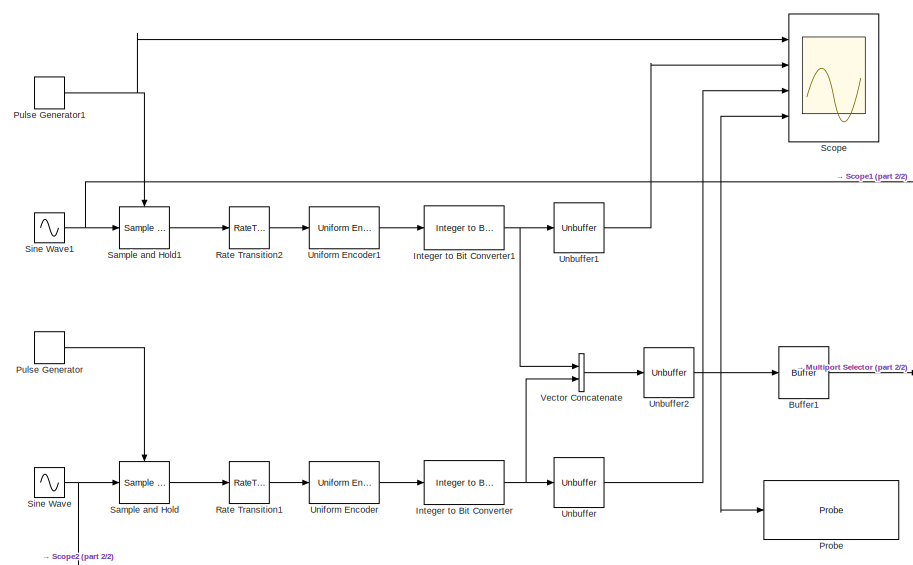
[diagram: root canvas - part 1/2, left side, full height]
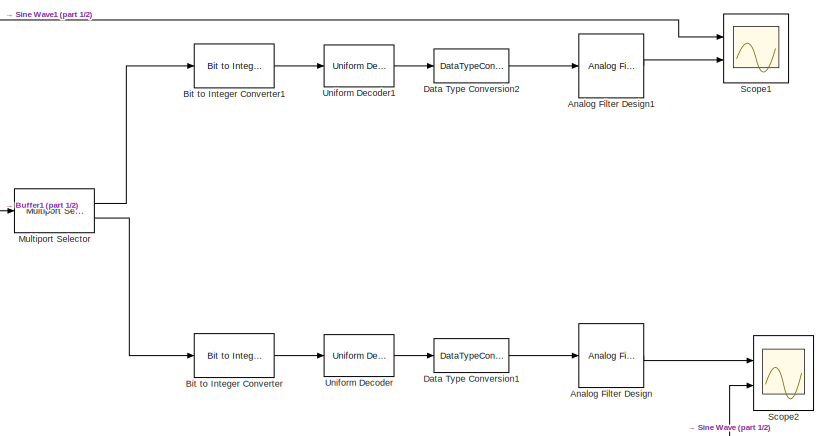
[diagram: root canvas - part 2/2, middle right region]
MODEL slx_621b3afaef29
KIND model
CONFIG AbsTol = auto
CONFIG EnableMultiTasking = off
CONFIG FixedStep = auto
CONFIG MaxStep = auto
CONFIG MinStep = auto
CONFIG RelTol = 1e-3
CONFIG SampleTimeConstraint = Unconstrained
CONFIG Solver = VariableStepAuto
CONFIG SolverName = VariableStepAuto
CONFIG StartTime = 0.0
CONFIG StopTime = 5
BLOCK [Reference] Analog Filter Design  REF=dsparch4/Analog
Filter Design
  Ports = [1, 1]
  SourceBlock = dsparch4/Analog\nFilter Design
  SourceProductBaseCode = DS
  SourceProductName = DSP System Toolbox
  SourceType = Analog Filter Design
BLOCK [Reference] Analog Filter Design1  REF=dsparch4/Analog
Filter Design
  Ports = [1, 1]
  SourceBlock = dsparch4/Analog\nFilter Design
  SourceProductBaseCode = DS
  SourceProductName = DSP System Toolbox
  SourceType = Analog Filter Design
BLOCK [Reference] Bit to Integer Converter  REF=commutil2/Bit to Integer
Converter
  Ports = [1, 1]
  SourceBlock = commutil2/Bit to Integer\nConverter
  SourceProductBaseCode = CM
  SourceProductName = Communications System Toolbox
  SourceType = Bit to Integer Converter
BLOCK [Reference] Bit to Integer Converter1  REF=commutil2/Bit to Integer
Converter
  Ports = [1, 1]
  SourceBlock = commutil2/Bit to Integer\nConverter
  SourceProductBaseCode = CM
  SourceProductName = Communications System Toolbox
  SourceType = Bit to Integer Converter
BLOCK [Buffer] Buffer1
  N = 16
  OutputFrames = off
BLOCK [DataTypeConversion] Data Type Conversion1
  OutDataTypeStr = double
  RndMeth = Floor
  SaturateOnIntegerOverflow = off
BLOCK [DataTypeConversion] Data Type Conversion2
  OutDataTypeStr = double
  RndMeth = Floor
  SaturateOnIntegerOverflow = off
BLOCK [Reference] Integer to Bit Converter  REF=commutil2/Integer to Bit
Converter
  Ports = [1, 1]
  SourceBlock = commutil2/Integer to Bit\nConverter
  SourceProductBaseCode = CM
  SourceProductName = Communications System Toolbox
  SourceType = Integer to Bit Converter
BLOCK [Reference] Integer to Bit Converter1  REF=commutil2/Integer to Bit
Converter
  Ports = [1, 1]
  SourceBlock = commutil2/Integer to Bit\nConverter
  SourceProductBaseCode = CM
  SourceProductName = Communications System Toolbox
  SourceType = Integer to Bit Converter
BLOCK [Reference] Multiport Selector  REF=dspindex/Multiport
Selector
  Ports = [1, 2]
  SourceBlock = dspindex/Multiport\nSelector
  SourceProductBaseCode = DS
  SourceProductName = DSP System Toolbox
  SourceType = Multiport Selector
BLOCK [Probe] Probe
  Ports = [1, 4]
  ProbeComplexityDataType = Same as input
  ProbeDimensionsDataType = Same as input
  ProbeSampleTimeDataType = Same as input
  ProbeSignalDimensions = on
  ProbeWidthDataType = Same as input
BLOCK [DiscretePulseGenerator] Pulse Generator
  Period = 1/8000
  Ports = [0, 1]
  PulseType = Time based
  PulseWidth = 50
BLOCK [DiscretePulseGenerator] Pulse Generator1
  Period = 1/8000
  Ports = [0, 1]
  PulseType = Time based
  PulseWidth = 50
BLOCK [RateTransition] Rate Transition1
  OutPortSampleTime = 1/8000
BLOCK [RateTransition] Rate Transition2
  OutPortSampleTime = 1/8000
BLOCK [Reference] Sample and Hold  REF=dspsigops/Sample
and Hold
  Ports = [1, 1, 0, 1]
  SourceBlock = dspsigops/Sample\nand Hold
  SourceProductBaseCode = DS
  SourceProductName = DSP System Toolbox
  SourceType = Sample and Hold
BLOCK [Reference] Sample and Hold1  REF=dspsigops/Sample
and Hold
  Ports = [1, 1, 0, 1]
  SourceBlock = dspsigops/Sample\nand Hold
  SourceProductBaseCode = DS
  SourceProductName = DSP System Toolbox
  SourceType = Sample and Hold
BLOCK [Scope] Scope
  Floating = off
  NumInputPorts = 4
  Ports = [4]
  ScopeSpecificationString = Simulink.scopes.TimeScopeBlockCfg('CurrentConfiguration', extmgr.ConfigurationSet(extmgr.Configuration('Core','General UI',true),extmgr.Configuration('Core','Source UI',true),extmgr.Configuration('Sources','WiredSimulink',true),extmgr.Configuration('Visuals','Time Domain',true,'SerializedDisplays',{struct('MinYLimReal','-0.125','MaxYLimReal','1.125','YLabelReal','','MinYLimMag','0.00000','MaxYLimM...<+3447ch>
BLOCK [Scope] Scope1
  Floating = off
  NumInputPorts = 2
  Ports = [2]
  ScopeSpecificationString = Simulink.scopes.TimeScopeBlockCfg('CurrentConfiguration', extmgr.ConfigurationSet(extmgr.Configuration('Core','General UI',true),extmgr.Configuration('Core','Source UI',true),extmgr.Configuration('Sources','WiredSimulink',true,'DataLoggingVariableName','ScopeData1'),extmgr.Configuration('Visuals','Time Domain',true,'SerializedDisplays',{struct('MinYLimReal','-1.25','MaxYLimReal','1.25','YLabelReal...<+2095ch>
BLOCK [Scope] Scope2
  Floating = off
  NumInputPorts = 2
  Ports = [2]
  ScopeSpecificationString = Simulink.scopes.TimeScopeBlockCfg('CurrentConfiguration', extmgr.ConfigurationSet(extmgr.Configuration('Core','General UI',true),extmgr.Configuration('Core','Source UI',true),extmgr.Configuration('Sources','WiredSimulink',true,'DataLoggingVariableName','ScopeData2'),extmgr.Configuration('Visuals','Time Domain',true,'SerializedDisplays',{struct('MinYLimReal','-0.90778','MaxYLimReal','0.78977','YLab...<+2095ch>
BLOCK [Sin] Sine Wave
  Frequency = 3000*2*pi
  Ports = [0, 1]
  SampleTime = 1/64000
BLOCK [Sin] Sine Wave1
  Frequency = 3000*2*pi
  Ports = [0, 1]
  SampleTime = 1/64000
BLOCK [Unbuffer] Unbuffer
  Ports = [1, 1]
BLOCK [Unbuffer] Unbuffer1
  Ports = [1, 1]
BLOCK [Unbuffer] Unbuffer2
  Ports = [1, 1]
BLOCK [Reference] Uniform Decoder  REF=dspquant2/Uniform
Decoder
  Ports = [1, 1]
  SourceBlock = dspquant2/Uniform\nDecoder
  SourceProductBaseCode = DS
  SourceProductName = DSP System Toolbox
  SourceType = Uniform Decoder
BLOCK [Reference] Uniform Decoder1  REF=dspquant2/Uniform
Decoder
  Ports = [1, 1]
  SourceBlock = dspquant2/Uniform\nDecoder
  SourceProductBaseCode = DS
  SourceProductName = DSP System Toolbox
  SourceType = Uniform Decoder
BLOCK [Reference] Uniform Encoder  REF=dspquant2/Uniform
Encoder
  Ports = [1, 1]
  SourceBlock = dspquant2/Uniform\nEncoder
  SourceProductBaseCode = DS
  SourceProductName = DSP System Toolbox
  SourceType = Uniform Encoder
BLOCK [Reference] Uniform Encoder1  REF=dspquant2/Uniform
Encoder
  Ports = [1, 1]
  SourceBlock = dspquant2/Uniform\nEncoder
  SourceProductBaseCode = DS
  SourceProductName = DSP System Toolbox
  SourceType = Uniform Encoder
BLOCK [Concatenate] Vector Concatenate
  Ports = [2, 1]
LINE Analog Filter Design1:1 -> Scope1:2
LINE Analog Filter Design:1 -> Scope2:1
LINE Bit to Integer Converter1:1 -> Uniform Decoder1:1
LINE Bit to Integer Converter:1 -> Uniform Decoder:1
LINE Buffer1:1 -> Multiport Selector:1
LINE Data Type Conversion1:1 -> Analog Filter Design:1
LINE Data Type Conversion2:1 -> Analog Filter Design1:1
NET Integer to Bit Converter1:1 -> Unbuffer1:1, Vector Concatenate:1
NET Integer to Bit Converter:1 -> Unbuffer:1, Vector Concatenate:2
LINE Multiport Selector:1 -> Bit to Integer Converter1:1
LINE Multiport Selector:2 -> Bit to Integer Converter:1
NET Pulse Generator1:1 -> Sample and Hold1:trigger, Scope:1
LINE Pulse Generator:1 -> Sample and Hold:trigger
LINE Rate Transition1:1 -> Uniform Encoder:1
LINE Rate Transition2:1 -> Uniform Encoder1:1
LINE Sample and Hold1:1 -> Rate Transition2:1
LINE Sample and Hold:1 -> Rate Transition1:1
NET Sine Wave1:1 -> Sample and Hold1:1, Scope1:1
NET Sine Wave:1 -> Sample and Hold:1, Scope2:2
LINE Unbuffer1:1 -> Scope:2
NET Unbuffer2:1 -> Buffer1:1, Probe:1, Scope:4
LINE Unbuffer:1 -> Scope:3
LINE Uniform Decoder1:1 -> Data Type Conversion2:1
LINE Uniform Decoder:1 -> Data Type Conversion1:1
LINE Uniform Encoder1:1 -> Integer to Bit Converter1:1
LINE Uniform Encoder:1 -> Integer to Bit Converter:1
LINE Vector Concatenate:1 -> Unbuffer2:1
note: NET lines group one-source signal fan-out (src -> all destinations, sorted); 1:1 wires keep LINE
